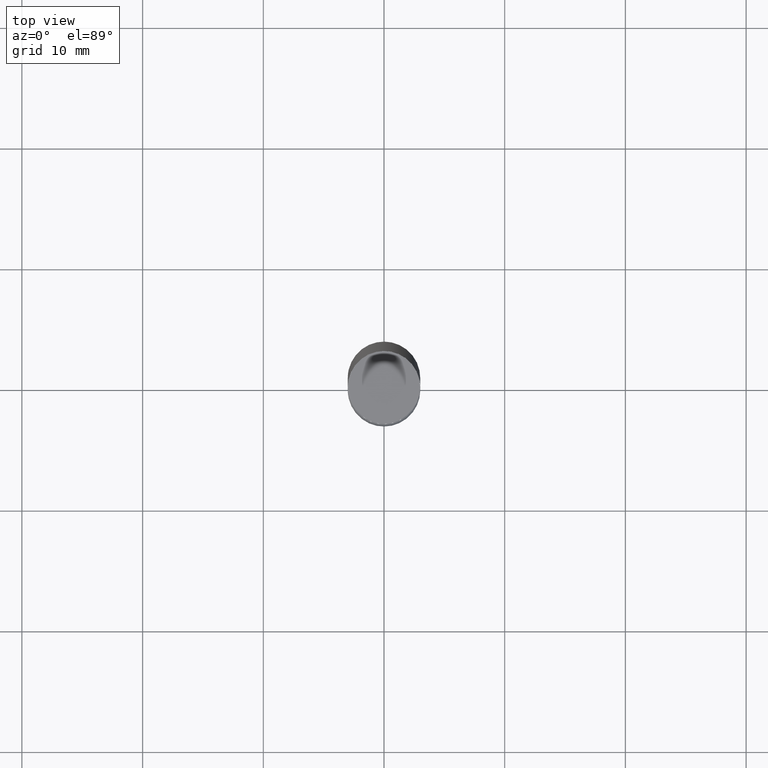
[diagram: clean part render]
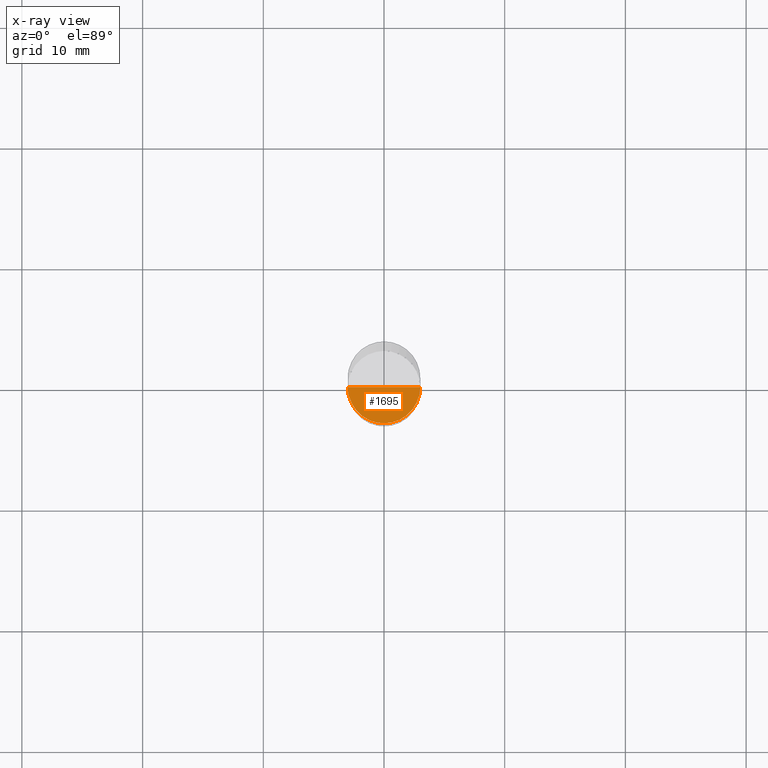
[diagram: x-ray — body ghosted, one internal face saturated and labeled with its STEP entity id]
A machine part, top view, then the same camera in x-ray: the body is ghosted and one INTERNAL B-rep face — a face not visible from any outside direction — is saturated and labeled: STEP entity #1695.
In plain terms, the highlighted face is a freeform B-spline surface patch.
Its self-contained STEP definition (entity closure, byte-faithful):
#1502=CARTESIAN_POINT('',(3.0,0.0,0.0));
#1506=CARTESIAN_POINT('',(-3.0,0.0,0.0));
#1507=CARTESIAN_POINT('',(0.0,0.0,0.0));
#1523=CARTESIAN_POINT('',(-3.0,-3.0,0.0));
#1524=CARTESIAN_POINT('',(0.0,-3.0,0.0));
#1525=CARTESIAN_POINT('',(3.0,-3.0,0.0));
#1680=(
BOUNDED_SURFACE()
B_SPLINE_SURFACE(1,2,(
(#1506,#1523,#1524,#1525,#1502),
(#1507,#1507,#1507,#1507,#1507)
), .UNSPECIFIED.,.F.,.F.,.F.)
B_SPLINE_SURFACE_WITH_KNOTS((2,2),(3,2,3),(
0.0,1.0),(
0.0,0.5,1.0), .UNSPECIFIED.)
GEOMETRIC_REPRESENTATION_ITEM()
RATIONAL_B_SPLINE_SURFACE(((1.0,0.707106781187,1.0,0.707106781187,1.0),
(1.0,0.707106781187,1.0,0.707106781187,1.0)
))
REPRESENTATION_ITEM('')
SURFACE()
);
#1681=(
BOUNDED_CURVE()
B_SPLINE_CURVE(1,(#1507,#1502),.UNSPECIFIED.,.F.,.F.)
B_SPLINE_CURVE_WITH_KNOTS((2,2),
(0.0,1.0),.UNSPECIFIED.)
CURVE()
GEOMETRIC_REPRESENTATION_ITEM()
RATIONAL_B_SPLINE_CURVE((1.0,1.0))
REPRESENTATION_ITEM('')
);
#1682=(
BOUNDED_CURVE()
B_SPLINE_CURVE(2,(#1502,#1525,#1524,#1523,#1506),.UNSPECIFIED.,.F.,.F.)
B_SPLINE_CURVE_WITH_KNOTS((3,2,3),
(0.0,0.5,1.0),.UNSPECIFIED.)
CURVE()
GEOMETRIC_REPRESENTATION_ITEM()
RATIONAL_B_SPLINE_CURVE((1.0,0.707106781187,1.0,0.707106781187,1.0))
REPRESENTATION_ITEM('')
);
#1683=(
BOUNDED_CURVE()
B_SPLINE_CURVE(1,(#1506,#1507),.UNSPECIFIED.,.F.,.F.)
B_SPLINE_CURVE_WITH_KNOTS((2,2),
(0.0,1.0),.UNSPECIFIED.)
CURVE()
GEOMETRIC_REPRESENTATION_ITEM()
RATIONAL_B_SPLINE_CURVE((1.0,1.0))
REPRESENTATION_ITEM('')
);
#1684=VERTEX_POINT('',#1502);
#1685=VERTEX_POINT('',#1506);
#1686=VERTEX_POINT('',#1507);
#1687=EDGE_CURVE('',#1686,#1684,#1681,.T.);
#1688=EDGE_CURVE('',#1684,#1685,#1682,.T.);
#1689=EDGE_CURVE('',#1685,#1686,#1683,.T.);
#1690=ORIENTED_EDGE('',*,*,#1687,.T.);
#1691=ORIENTED_EDGE('',*,*,#1688,.T.);
#1692=ORIENTED_EDGE('',*,*,#1689,.T.);
#1693=EDGE_LOOP('',(#1690,#1691,#1692));
#1694=FACE_OUTER_BOUND('',#1693,.T.);
#1695=ADVANCED_FACE('',(#1694),#1680,.T.);